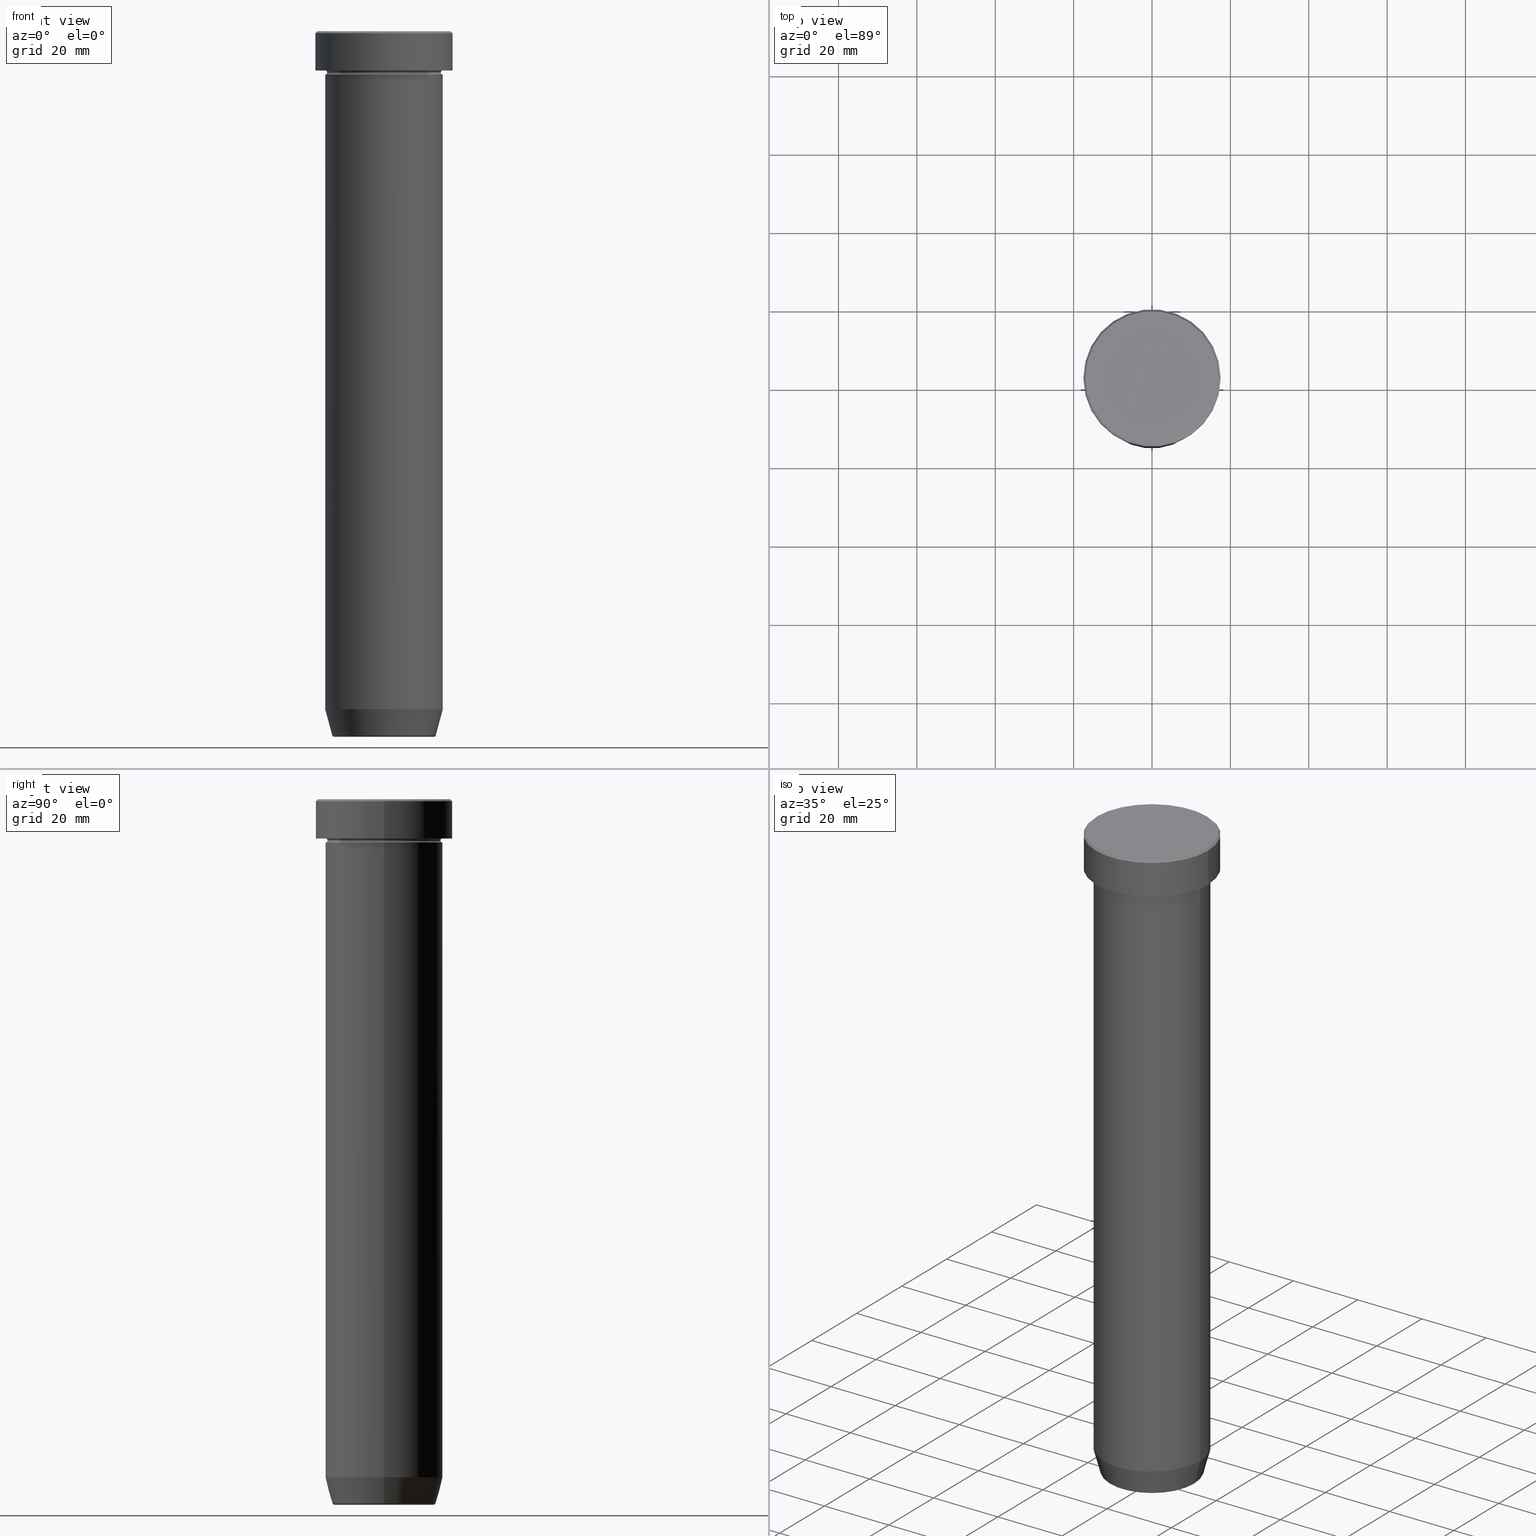
[diagram: canonical four-view strip — front | top / right | iso, engineering-drawing reading convention]
A machine part, canonical four-view strip (front | top / right | iso — engineering-drawing reading convention). The complete STEP part file that produces these views, byte-faithful:
ISO-10303-21;
HEADER;
FILE_DESCRIPTION (( 'STEP AP203' ),
    '1' );
FILE_NAME ('f621.STEP',
    '2024-01-02T17:38:19',
    ( '' ),
    ( '' ),
    'SwSTEP 2.0',
    'SolidWorks 2019',
    '' );
FILE_SCHEMA (( 'CONFIG_CONTROL_DESIGN' ));
ENDSEC;

DATA;
#1 = CARTESIAN_POINT ( 'NONE',  ( 0.000000000000000000, 0.000000000000000000, -9.999999999999998224 ) ) ;
#2 = VERTEX_POINT ( 'NONE', #99 ) ;
#3 = VERTEX_POINT ( 'NONE', #594 ) ;
#4 = CIRCLE ( 'NONE', #357, 0.5000000000000004441 ) ;
#5 = AXIS2_PLACEMENT_3D ( 'NONE', #224, #365, #536 ) ;
#6 = VERTEX_POINT ( 'NONE', #60 ) ;
#7 = PERSON_AND_ORGANIZATION ( #595, #177 ) ;
#8 = CC_DESIGN_SECURITY_CLASSIFICATION ( #44, ( #446 ) ) ;
#9 = EDGE_CURVE ( 'NONE', #333, #66, #551, .T. ) ;
#10 = EDGE_LOOP ( 'NONE', ( #458, #541, #545, #58 ) ) ;
#11 = CARTESIAN_POINT ( 'NONE',  ( 0.000000000000000000, 0.000000000000000000, 0.000000000000000000 ) ) ;
#12 = EDGE_LOOP ( 'NONE', ( #94, #548, #247, #422 ) ) ;
#13 = MANIFOLD_SOLID_BREP ( 'Zaoblit4', #158 ) ;
#14 = DIRECTION ( 'NONE',  ( 0.000000000000000000, 0.000000000000000000, 1.000000000000000000 ) ) ;
#15 = ORIENTED_EDGE ( 'NONE', *, *, #29, .T. ) ;
#16 = DATE_TIME_ROLE ( 'classification_date' ) ;
#17 = ORIENTED_EDGE ( 'NONE', *, *, #181, .F. ) ;
#18 = PERSON_AND_ORGANIZATION ( #595, #177 ) ;
#19 = EDGE_CURVE ( 'NONE', #54, #197, #467, .T. ) ;
#20 = DIRECTION ( 'NONE',  ( -1.224646799147353207E-16, 1.000000000000000000, 0.000000000000000000 ) ) ;
#21 = DIRECTION ( 'NONE',  ( 0.000000000000000000, 0.000000000000000000, -1.000000000000000000 ) ) ;
#22 = DIRECTION ( 'NONE',  ( -0.000000000000000000, -0.000000000000000000, 1.000000000000000000 ) ) ;
#23 = DIRECTION ( 'NONE',  ( -1.000000000000000000, 1.224646799147353454E-16, 0.000000000000000000 ) ) ;
#24 = FACE_OUTER_BOUND ( 'NONE', #508, .T. ) ;
#25 = UNCERTAINTY_MEASURE_WITH_UNIT (LENGTH_MEASURE( 1.000000000000000082E-05 ), #378, 'distance_accuracy_value', 'NONE');
#26 = AXIS2_PLACEMENT_3D ( 'NONE', #408, #399, #86 ) ;
#27 = CIRCLE ( 'NONE', #532, 0.5000000000000004441 ) ;
#28 = DIRECTION ( 'NONE',  ( -0.000000000000000000, -0.000000000000000000, 1.000000000000000000 ) ) ;
#29 = EDGE_CURVE ( 'NONE', #302, #301, #297, .T. ) ;
#30 = LOCAL_TIME ( 18, 38, 19.00000000000000000, #513 ) ;
#31 = PERSON_AND_ORGANIZATION_ROLE ( 'classification_officer' ) ;
#32 = APPLICATION_CONTEXT ( 'configuration controlled 3d designs of mechanical parts and assemblies' ) ;
#33 = CARTESIAN_POINT ( 'NONE',  ( -12.74069215899265828, 1.589857736427681035E-15, -180.0000000000000000 ) ) ;
#34 = DIRECTION ( 'NONE',  ( 0.000000000000000000, 0.000000000000000000, -1.000000000000000000 ) ) ;
#35 = EDGE_LOOP ( 'NONE', ( #343, #293, #152, #109 ) ) ;
#36 = DIRECTION ( 'NONE',  ( -0.7071067811865426878, 0.000000000000000000, -0.7071067811865524577 ) ) ;
#37 = FACE_OUTER_BOUND ( 'NONE', #462, .T. ) ;
#38 = DIRECTION ( 'NONE',  ( -0.000000000000000000, -0.000000000000000000, 1.000000000000000000 ) ) ;
#39 = DIRECTION ( 'NONE',  ( 0.000000000000000000, 0.000000000000000000, -1.000000000000000000 ) ) ;
#40 = ORIENTED_EDGE ( 'NONE', *, *, #19, .T. ) ;
#41 = PRODUCT_DEFINITION_SHAPE ( 'NONE', 'NONE',  #486 ) ;
#42 = EDGE_CURVE ( 'NONE', #54, #227, #27, .T. ) ;
#43 = DIRECTION ( 'NONE',  ( -0.000000000000000000, -0.000000000000000000, 1.000000000000000000 ) ) ;
#44 = SECURITY_CLASSIFICATION ( '', '', #433 ) ;
#45 = DIRECTION ( 'NONE',  ( -1.000000000000000000, 0.000000000000000000, 0.000000000000000000 ) ) ;
#46 = EDGE_LOOP ( 'NONE', ( #382, #562 ) ) ;
#47 = EDGE_LOOP ( 'NONE', ( #179, #237, #55, #519 ) ) ;
#48 = CYLINDRICAL_SURFACE ( 'NONE', #393, 15.00000000000000000 ) ;
#49 = ORIENTED_EDGE ( 'NONE', *, *, #76, .F. ) ;
#50 = CARTESIAN_POINT ( 'NONE',  ( 0.000000000000000000, 1.592040838891559450E-14, -180.0000000000000000 ) ) ;
#51 = AXIS2_PLACEMENT_3D ( 'NONE', #162, #392, #567 ) ;
#52 = DIRECTION ( 'NONE',  ( -1.000000000000000000, 0.000000000000000000, 0.000000000000000000 ) ) ;
#53 = AXIS2_PLACEMENT_3D ( 'NONE', #135, #28, #580 ) ;
#54 = VERTEX_POINT ( 'NONE', #33 ) ;
#55 = ORIENTED_EDGE ( 'NONE', *, *, #479, .T. ) ;
#56 = EDGE_CURVE ( 'NONE', #131, #295, #440, .T. ) ;
#57 = DIRECTION ( 'NONE',  ( -0.000000000000000000, -0.000000000000000000, 1.000000000000000000 ) ) ;
#58 = ORIENTED_EDGE ( 'NONE', *, *, #9, .F. ) ;
#59 = FACE_OUTER_BOUND ( 'NONE', #35, .T. ) ;
#60 = CARTESIAN_POINT ( 'NONE',  ( 15.00000000000000000, 0.000000000000000000, -36.00000000000000000 ) ) ;
#61 = EDGE_CURVE ( 'NONE', #414, #2, #570, .T. ) ;
#62 = SHAPE_DEFINITION_REPRESENTATION ( #41, #258 ) ;
#63 = DIRECTION ( 'NONE',  ( 0.000000000000000000, 0.000000000000000000, -1.000000000000000000 ) ) ;
#64 = CIRCLE ( 'NONE', #350, 15.00000000000000000 ) ;
#65 = ORIENTED_EDGE ( 'NONE', *, *, #511, .F. ) ;
#66 = VERTEX_POINT ( 'NONE', #308 ) ;
#67 = CALENDAR_DATE ( 2024, 2, 1 ) ;
#68 = CARTESIAN_POINT ( 'NONE',  ( -17.00000000000000000, 0.000000000000000000, 0.000000000000000000 ) ) ;
#69 = CARTESIAN_POINT ( 'NONE',  ( 0.000000000000000000, 0.000000000000000000, -36.00000000000000000 ) ) ;
#70 = ORIENTED_EDGE ( 'NONE', *, *, #597, .F. ) ;
#71 = FACE_OUTER_BOUND ( 'NONE', #194, .T. ) ;
#72 = COORDINATED_UNIVERSAL_TIME_OFFSET ( 1, 0, .AHEAD. ) ;
#73 = PERSON_AND_ORGANIZATION ( #595, #177 ) ;
#74 = AXIS2_PLACEMENT_3D ( 'NONE', #348, #63, #428 ) ;
#75 = AXIS2_PLACEMENT_3D ( 'NONE', #166, #43, #535 ) ;
#76 = EDGE_CURVE ( 'NONE', #3, #295, #126, .T. ) ;
#77 = FACE_OUTER_BOUND ( 'NONE', #12, .T. ) ;
#78 = LOCAL_TIME ( 18, 38, 19.00000000000000000, #160 ) ;
#79 = ADVANCED_FACE ( 'NONE', ( #487 ), #269, .T. ) ;
#80 = FACE_OUTER_BOUND ( 'NONE', #336, .T. ) ;
#81 = VECTOR ( 'NONE', #447, 1000.000000000000000 ) ;
#82 = CALENDAR_DATE ( 2024, 2, 1 ) ;
#83 = CARTESIAN_POINT ( 'NONE',  ( -17.00000000000000000, 0.000000000000000000, 0.000000000000000000 ) ) ;
#84 = DIRECTION ( 'NONE',  ( -0.000000000000000000, -0.000000000000000000, 1.000000000000000000 ) ) ;
#85 = CARTESIAN_POINT ( 'NONE',  ( 15.00000000000000000, 1.836970198721029589E-15, -9.999999999999998224 ) ) ;
#86 = DIRECTION ( 'NONE',  ( -1.000000000000000000, 0.000000000000000000, 0.000000000000000000 ) ) ;
#87 = DIRECTION ( 'NONE',  ( 1.224646799147353207E-16, 1.000000000000000000, 0.000000000000000000 ) ) ;
#88 = DIRECTION ( 'NONE',  ( 1.000000000000000000, 0.000000000000000000, 0.000000000000000000 ) ) ;
#89 = AXIS2_PLACEMENT_3D ( 'NONE', #176, #221, #321 ) ;
#90 = AXIS2_PLACEMENT_3D ( 'NONE', #492, #22, #537 ) ;
#91 = AXIS2_PLACEMENT_3D ( 'NONE', #240, #280, #334 ) ;
#92 = DIRECTION ( 'NONE',  ( -0.000000000000000000, -0.000000000000000000, 1.000000000000000000 ) ) ;
#93 = ORIENTED_EDGE ( 'NONE', *, *, #533, .F. ) ;
#94 = ORIENTED_EDGE ( 'NONE', *, *, #563, .F. ) ;
#95 = ORIENTED_EDGE ( 'NONE', *, *, #323, .F. ) ;
#96 = CARTESIAN_POINT ( 'NONE',  ( -13.12435565298213369, 1.607270014129604188E-15, -180.0000000000000000 ) ) ;
#97 = DIRECTION ( 'NONE',  ( 0.000000000000000000, 0.000000000000000000, -1.000000000000000000 ) ) ;
#98 = EDGE_CURVE ( 'NONE', #197, #54, #317, .T. ) ;
#99 = CARTESIAN_POINT ( 'NONE',  ( 17.00000000000000000, 2.112515728529184067E-15, 0.000000000000000000 ) ) ;
#100 = PLANE ( 'NONE',  #315 ) ;
#101 = DIRECTION ( 'NONE',  ( -0.000000000000000000, -0.000000000000000000, 1.000000000000000000 ) ) ;
#102 = CIRCLE ( 'NONE', #112, 14.49999999999999822 ) ;
#103 = EDGE_LOOP ( 'NONE', ( #552, #144 ) ) ;
#104 = EDGE_LOOP ( 'NONE', ( #338, #599, #430, #229 ) ) ;
#105 = DIRECTION ( 'NONE',  ( 1.000000000000000000, 0.000000000000000000, 0.000000000000000000 ) ) ;
#106 = DIRECTION ( 'NONE',  ( 1.000000000000000000, 0.000000000000000000, 0.000000000000000000 ) ) ;
#107 = ADVANCED_FACE ( 'NONE', ( #543 ), #184, .F. ) ;
#108 = ORIENTED_EDGE ( 'NONE', *, *, #56, .T. ) ;
#109 = ORIENTED_EDGE ( 'NONE', *, *, #397, .F. ) ;
#110 = DIRECTION ( 'NONE',  ( 1.000000000000000000, 0.000000000000000000, 0.000000000000000000 ) ) ;
#111 = DIRECTION ( 'NONE',  ( 1.000000000000000000, 0.000000000000000000, 0.000000000000000000 ) ) ;
#112 = AXIS2_PLACEMENT_3D ( 'NONE', #320, #38, #571 ) ;
#113 = ORIENTED_EDGE ( 'NONE', *, *, #479, .F. ) ;
#114 = PERSON_AND_ORGANIZATION ( #595, #177 ) ;
#115 = LOCAL_TIME ( 18, 38, 19.00000000000000000, #524 ) ;
#116 = ORIENTED_EDGE ( 'NONE', *, *, #29, .F. ) ;
#117 = ADVANCED_FACE ( 'NONE', ( #24 ), #581, .T. ) ;
#118 = TOROIDAL_SURFACE ( 'NONE', #74, 15.00000000000000000, 0.5000000000000000000 ) ;
#119 = CARTESIAN_POINT ( 'NONE',  ( 15.00000000000000000, 1.836970198721029589E-15, -10.49999999999999822 ) ) ;
#120 = AXIS2_PLACEMENT_3D ( 'NONE', #402, #327, #105 ) ;
#121 = EDGE_CURVE ( 'NONE', #344, #346, #182, .T. ) ;
#122 = CYLINDRICAL_SURFACE ( 'NONE', #485, 17.50000000000000000 ) ;
#123 = CARTESIAN_POINT ( 'NONE',  ( 12.74069215899265828, 0.000000000000000000, -180.0000000000000000 ) ) ;
#124 = PERSON_AND_ORGANIZATION ( #595, #177 ) ;
#125 = DIRECTION ( 'NONE',  ( -0.000000000000000000, -0.000000000000000000, 1.000000000000000000 ) ) ;
#126 = LINE ( 'NONE', #363, #138 ) ;
#127 = CARTESIAN_POINT ( 'NONE',  ( -15.00000000000000000, 1.836970198721029589E-15, -10.49999999999999822 ) ) ;
#128 = VECTOR ( 'NONE', #565, 1000.000000000000000 ) ;
#129 = CARTESIAN_POINT ( 'NONE',  ( 13.22365507213718594, 0.000000000000000000, -179.6294095225512422 ) ) ;
#130 = AXIS2_PLACEMENT_3D ( 'NONE', #421, #92, #559 ) ;
#131 = VERTEX_POINT ( 'NONE', #572 ) ;
#132 = CARTESIAN_POINT ( 'NONE',  ( -15.00000000000000000, 1.836970198721029589E-15, -36.00000000000000000 ) ) ;
#133 = EDGE_CURVE ( 'NONE', #233, #134, #286, .T. ) ;
#134 = VERTEX_POINT ( 'NONE', #85 ) ;
#135 = CARTESIAN_POINT ( 'NONE',  ( 0.000000000000000000, 0.000000000000000000, 0.000000000000000000 ) ) ;
#136 = AXIS2_PLACEMENT_3D ( 'NONE', #310, #165, #214 ) ;
#137 = DIRECTION ( 'NONE',  ( 1.000000000000000000, 0.000000000000000000, 0.000000000000000000 ) ) ;
#138 = VECTOR ( 'NONE', #84, 1000.000000000000000 ) ;
#139 = VERTEX_POINT ( 'NONE', #273 ) ;
#140 = EDGE_CURVE ( 'NONE', #197, #333, #530, .T. ) ;
#141 = DIRECTION ( 'NONE',  ( -0.000000000000000000, -0.000000000000000000, 1.000000000000000000 ) ) ;
#142 = DIRECTION ( 'NONE',  ( -0.000000000000000000, -0.000000000000000000, 1.000000000000000000 ) ) ;
#143 = CARTESIAN_POINT ( 'NONE',  ( 13.12435565298213369, 0.000000000000000000, -180.0000000000000000 ) ) ;
#144 = ORIENTED_EDGE ( 'NONE', *, *, #406, .T. ) ;
#145 = VECTOR ( 'NONE', #36, 1000.000000000000000 ) ;
#146 = CARTESIAN_POINT ( 'NONE',  ( 15.00000000000000000, 0.000000000000000000, -10.49999999999999822 ) ) ;
#147 = VECTOR ( 'NONE', #401, 1000.000000000000000 ) ;
#148 = EDGE_CURVE ( 'NONE', #3, #139, #226, .T. ) ;
#149 = ORIENTED_EDGE ( 'NONE', *, *, #236, .F. ) ;
#150 = DIRECTION ( 'NONE',  ( -0.2588190451025214611, 3.169619151431774186E-17, 0.9659258262890679791 ) ) ;
#151 = CARTESIAN_POINT ( 'NONE',  ( 0.000000000000000000, 0.000000000000000000, -9.999999999999998224 ) ) ;
#152 = ORIENTED_EDGE ( 'NONE', *, *, #434, .T. ) ;
#153 = PERSON_AND_ORGANIZATION ( #595, #177 ) ;
#154 = DIRECTION ( 'NONE',  ( -0.000000000000000000, -0.000000000000000000, 1.000000000000000000 ) ) ;
#155 = DIRECTION ( 'NONE',  ( 0.000000000000000000, -0.000000000000000000, 1.000000000000000000 ) ) ;
#156 = ORIENTED_EDGE ( 'NONE', *, *, #148, .T. ) ;
#157 = AXIS2_PLACEMENT_3D ( 'NONE', #183, #589, #248 ) ;
#158 = CLOSED_SHELL ( 'NONE', ( #375, #193, #117, #107, #525, #254, #290, #500 ) ) ;
#159 = ADVANCED_FACE ( 'NONE', ( #294 ), #473, .T. ) ;
#160 = COORDINATED_UNIVERSAL_TIME_OFFSET ( 1, 0, .AHEAD. ) ;
#161 = CALENDAR_DATE ( 2024, 2, 1 ) ;
#162 = CARTESIAN_POINT ( 'NONE',  ( 0.000000000000000000, 0.000000000000000000, -0.5000000000000073275 ) ) ;
#163 = CIRCLE ( 'NONE', #53, 17.00000000000000000 ) ;
#164 = CC_DESIGN_DATE_AND_TIME_ASSIGNMENT ( #304, #250, ( #486 ) ) ;
#165 = DIRECTION ( 'NONE',  ( -0.000000000000000000, -0.000000000000000000, 1.000000000000000000 ) ) ;
#166 = CARTESIAN_POINT ( 'NONE',  ( 0.000000000000000000, 0.000000000000000000, -36.00000000000000000 ) ) ;
#167 = FACE_OUTER_BOUND ( 'NONE', #10, .T. ) ;
#168 = APPROVAL ( #427, 'NEUR�EN�' ) ;
#169 = DIRECTION ( 'NONE',  ( 0.000000000000000000, 0.000000000000000000, -1.000000000000000000 ) ) ;
#170 = CYLINDRICAL_SURFACE ( 'NONE', #287, 17.50000000000000000 ) ;
#171 = APPROVAL_DATE_TIME ( #560, #394 ) ;
#172 = CARTESIAN_POINT ( 'NONE',  ( 0.000000000000000000, 0.000000000000000000, -179.5000000000000000 ) ) ;
#173 = AXIS2_PLACEMENT_3D ( 'NONE', #577, #268, #21 ) ;
#174 = EDGE_CURVE ( 'NONE', #344, #461, #435, .T. ) ;
#175 = DIRECTION ( 'NONE',  ( -1.000000000000000000, 0.000000000000000000, 0.000000000000000000 ) ) ;
#176 = CARTESIAN_POINT ( 'NONE',  ( 0.000000000000000000, 0.000000000000000000, -180.0000000000000000 ) ) ;
#177 = ORGANIZATION ( 'NEUR�EN�', 'NEUR�EN�', '' ) ;
#178 = DIRECTION ( 'NONE',  ( -0.000000000000000000, -0.000000000000000000, 1.000000000000000000 ) ) ;
#179 = ORIENTED_EDGE ( 'NONE', *, *, #121, .F. ) ;
#180 = DIRECTION ( 'NONE',  ( -0.000000000000000000, -0.000000000000000000, 1.000000000000000000 ) ) ;
#181 = EDGE_CURVE ( 'NONE', #301, #302, #239, .T. ) ;
#182 = CIRCLE ( 'NONE', #305, 0.5000000000000004441 ) ;
#183 = CARTESIAN_POINT ( 'NONE',  ( 12.74069215899265828, 0.000000000000000000, -179.5000000000000000 ) ) ;
#184 = PLANE ( 'NONE',  #191 ) ;
#185 = VECTOR ( 'NONE', #150, 1000.000000000000114 ) ;
#186 = FACE_OUTER_BOUND ( 'NONE', #47, .T. ) ;
#187 = ORIENTED_EDGE ( 'NONE', *, *, #434, .F. ) ;
#188 = DIRECTION ( 'NONE',  ( -0.000000000000000000, -0.000000000000000000, 1.000000000000000000 ) ) ;
#189 = DIRECTION ( 'NONE',  ( 0.2588190451025214611, 0.000000000000000000, 0.9659258262890679791 ) ) ;
#190 = ORIENTED_EDGE ( 'NONE', *, *, #236, .T. ) ;
#191 = AXIS2_PLACEMENT_3D ( 'NONE', #335, #97, #225 ) ;
#192 = LINE ( 'NONE', #96, #185 ) ;
#193 = ADVANCED_FACE ( 'NONE', ( #167 ), #507, .T. ) ;
#194 = EDGE_LOOP ( 'NONE', ( #93, #470, #423, #113 ) ) ;
#195 = LOCAL_TIME ( 18, 38, 19.00000000000000000, #482 ) ;
#196 = DIRECTION ( 'NONE',  ( 1.000000000000000000, 0.000000000000000000, 0.000000000000000000 ) ) ;
#197 = VERTEX_POINT ( 'NONE', #123 ) ;
#198 = APPROVAL_DATE_TIME ( #270, #168 ) ;
#199 = EDGE_CURVE ( 'NONE', #289, #346, #582, .T. ) ;
#200 = MANIFOLD_SOLID_BREP ( 'Zkosen�1', #316 ) ;
#201 = APPROVAL_DATE_TIME ( #292, #369 ) ;
#202 = CONICAL_SURFACE ( 'NONE', #455, 13.12435565298213369, 0.2617993877991502405 ) ;
#203 = CONICAL_SURFACE ( 'NONE', #531, 17.00000000000000000, 0.7853981633974415066 ) ;
#204 = AXIS2_PLACEMENT_3D ( 'NONE', #69, #255, #432 ) ;
#205 = ORIENTED_EDGE ( 'NONE', *, *, #522, .F. ) ;
#206 = AXIS2_PLACEMENT_3D ( 'NONE', #1, #101, #106 ) ;
#207 = EDGE_CURVE ( 'NONE', #295, #131, #341, .T. ) ;
#208 = CARTESIAN_POINT ( 'NONE',  ( 14.49999999999999822, 0.000000000000000000, -10.49999999999999822 ) ) ;
#209 = DIRECTION ( 'NONE',  ( 1.000000000000000000, 0.000000000000000000, 0.000000000000000000 ) ) ;
#210 = CC_DESIGN_DATE_AND_TIME_ASSIGNMENT ( #303, #16, ( #44 ) ) ;
#211 = DIRECTION ( 'NONE',  ( -1.000000000000000000, 0.000000000000000000, 0.000000000000000000 ) ) ;
#212 = DIRECTION ( 'NONE',  ( 1.000000000000000000, 0.000000000000000000, 0.000000000000000000 ) ) ;
#213 = CARTESIAN_POINT ( 'NONE',  ( -17.50000000000000000, 2.143131898507868248E-15, 0.000000000000000000 ) ) ;
#214 = DIRECTION ( 'NONE',  ( 1.000000000000000000, 0.000000000000000000, 0.000000000000000000 ) ) ;
#215 = DIRECTION ( 'NONE',  ( 0.000000000000000000, 0.000000000000000000, -1.000000000000000000 ) ) ;
#216 = CARTESIAN_POINT ( 'NONE',  ( 0.000000000000000000, 0.000000000000000000, -0.5000000000000073275 ) ) ;
#217 = DIRECTION ( 'NONE',  ( -1.000000000000000000, -1.224646799147349509E-16, 0.000000000000000000 ) ) ;
#218 = APPROVAL_PERSON_ORGANIZATION ( #7, #369, #351 ) ;
#219 = CALENDAR_DATE ( 2024, 2, 1 ) ;
#220 = CARTESIAN_POINT ( 'NONE',  ( 0.000000000000000000, 0.000000000000000000, -10.49999999999999822 ) ) ;
#221 = DIRECTION ( 'NONE',  ( 0.000000000000000000, 0.000000000000000000, -1.000000000000000000 ) ) ;
#222 = EDGE_CURVE ( 'NONE', #2, #295, #483, .T. ) ;
#223 = PLANE ( 'NONE',  #554 ) ;
#224 = CARTESIAN_POINT ( 'NONE',  ( 0.000000000000000000, 0.000000000000000000, 0.000000000000000000 ) ) ;
#225 = DIRECTION ( 'NONE',  ( -1.000000000000000000, 0.000000000000000000, -0.000000000000000000 ) ) ;
#226 = CIRCLE ( 'NONE', #381, 17.50000000000000000 ) ;
#227 = VERTEX_POINT ( 'NONE', #488 ) ;
#228 = TOROIDAL_SURFACE ( 'NONE', #518, 12.74069215899265828, 0.5000000000000000000 ) ;
#229 = ORIENTED_EDGE ( 'NONE', *, *, #207, .F. ) ;
#230 = FACE_OUTER_BOUND ( 'NONE', #282, .T. ) ;
#231 = CARTESIAN_POINT ( 'NONE',  ( 0.000000000000000000, 0.000000000000000000, 0.000000000000000000 ) ) ;
#232 = DIRECTION ( 'NONE',  ( -1.000000000000000000, 0.000000000000000000, -0.000000000000000000 ) ) ;
#233 = VERTEX_POINT ( 'NONE', #208 ) ;
#234 = EDGE_LOOP ( 'NONE', ( #596, #379 ) ) ;
#235 = CARTESIAN_POINT ( 'NONE',  ( 0.000000000000000000, 0.000000000000000000, -10.49999999999999822 ) ) ;
#236 = EDGE_CURVE ( 'NONE', #139, #131, #309, .T. ) ;
#237 = ORIENTED_EDGE ( 'NONE', *, *, #354, .F. ) ;
#238 = CARTESIAN_POINT ( 'NONE',  ( 0.000000000000000000, 0.000000000000000000, -9.999999999999998224 ) ) ;
#239 = CIRCLE ( 'NONE', #136, 15.00000000000000000 ) ;
#240 = CARTESIAN_POINT ( 'NONE',  ( 0.000000000000000000, 0.000000000000000000, -179.5000000000000000 ) ) ;
#241 = ORIENTED_EDGE ( 'NONE', *, *, #307, .F. ) ;
#242 = DIRECTION ( 'NONE',  ( 1.000000000000000000, 0.000000000000000000, 0.000000000000000000 ) ) ;
#243 = CARTESIAN_POINT ( 'NONE',  ( 0.000000000000000000, 0.000000000000000000, -173.0000000000000000 ) ) ;
#244 = EDGE_LOOP ( 'NONE', ( #588, #15, #380, #512 ) ) ;
#245 = ADVANCED_FACE ( 'NONE', ( #306 ), #118, .F. ) ;
#246 = DIRECTION ( 'NONE',  ( 0.000000000000000000, 0.000000000000000000, -1.000000000000000000 ) ) ;
#247 = ORIENTED_EDGE ( 'NONE', *, *, #9, .T. ) ;
#248 = DIRECTION ( 'NONE',  ( 0.000000000000000000, 0.000000000000000000, -1.000000000000000000 ) ) ;
#249 = AXIS2_PLACEMENT_3D ( 'NONE', #498, #125, #209 ) ;
#250 = DATE_TIME_ROLE ( 'creation_date' ) ;
#251 = CIRCLE ( 'NONE', #395, 13.22365507213718594 ) ;
#252 = CIRCLE ( 'NONE', #130, 14.49999999999999822 ) ;
#253 = CALENDAR_DATE ( 2024, 2, 1 ) ;
#254 = ADVANCED_FACE ( 'NONE', ( #77 ), #202, .T. ) ;
#255 = DIRECTION ( 'NONE',  ( -0.000000000000000000, -0.000000000000000000, 1.000000000000000000 ) ) ;
#256 = ORIENTED_EDGE ( 'NONE', *, *, #56, .F. ) ;
#257 = MECHANICAL_CONTEXT ( 'NONE', #568, 'mechanical' ) ;
#258 = ADVANCED_BREP_SHAPE_REPRESENTATION ( 'f621', ( #200, #13, #281 ), #366 ) ;
#259 = AXIS2_PLACEMENT_3D ( 'NONE', #119, #20, #217 ) ;
#260 = ORIENTED_EDGE ( 'NONE', *, *, #349, .T. ) ;
#261 = EDGE_CURVE ( 'NONE', #414, #131, #299, .T. ) ;
#262 = CC_DESIGN_APPROVAL ( #394, ( #486 ) ) ;
#263 = DIRECTION ( 'NONE',  ( 1.000000000000000000, 0.000000000000000000, 0.000000000000000000 ) ) ;
#264 = PRODUCT_RELATED_PRODUCT_CATEGORY ( 'detail', '', ( #557 ) ) ;
#265 = CARTESIAN_POINT ( 'NONE',  ( 0.000000000000000000, 0.000000000000000000, 0.000000000000000000 ) ) ;
#266 = DIRECTION ( 'NONE',  ( -0.000000000000000000, -0.000000000000000000, 1.000000000000000000 ) ) ;
#267 = AXIS2_PLACEMENT_3D ( 'NONE', #490, #436, #263 ) ;
#268 = DIRECTION ( 'NONE',  ( -0.000000000000000000, -1.000000000000000000, -0.000000000000000000 ) ) ;
#269 = CONICAL_SURFACE ( 'NONE', #296, 17.00000000000000000, 0.7853981633974415066 ) ;
#270 = DATE_AND_TIME ( #82, #78 ) ;
#271 = AXIS2_PLACEMENT_3D ( 'NONE', #235, #57, #598 ) ;
#272 = DIRECTION ( 'NONE',  ( 1.000000000000000000, 0.000000000000000000, 0.000000000000000000 ) ) ;
#273 = CARTESIAN_POINT ( 'NONE',  ( -17.50000000000000000, 2.143131898507868248E-15, -9.999999999999998224 ) ) ;
#274 = ADVANCED_FACE ( 'NONE', ( #230 ), #534, .T. ) ;
#275 = CARTESIAN_POINT ( 'NONE',  ( 15.00000000000000000, 0.000000000000000000, -36.00000000000000000 ) ) ;
#276 = DIRECTION ( 'NONE',  ( -0.000000000000000000, -0.000000000000000000, 1.000000000000000000 ) ) ;
#277 = EDGE_LOOP ( 'NONE', ( #285, #520, #65, #412 ) ) ;
#278 = CARTESIAN_POINT ( 'NONE',  ( -15.00000000000000000, 1.836970198721029589E-15, 0.000000000000000000 ) ) ;
#279 = ADVANCED_FACE ( 'NONE', ( #37 ), #319, .T. ) ;
#280 = DIRECTION ( 'NONE',  ( -0.000000000000000000, -0.000000000000000000, 1.000000000000000000 ) ) ;
#281 = AXIS2_PLACEMENT_3D ( 'NONE', #388, #14, #196 ) ;
#282 = EDGE_LOOP ( 'NONE', ( #17, #116 ) ) ;
#283 = CARTESIAN_POINT ( 'NONE',  ( 0.000000000000000000, 0.000000000000000000, -179.6294095225512422 ) ) ;
#284 = ORIENTED_EDGE ( 'NONE', *, *, #539, .T. ) ;
#285 = ORIENTED_EDGE ( 'NONE', *, *, #19, .F. ) ;
#286 = CIRCLE ( 'NONE', #259, 0.5000000000000004441 ) ;
#287 = AXIS2_PLACEMENT_3D ( 'NONE', #265, #495, #325 ) ;
#288 = LINE ( 'NONE', #587, #374 ) ;
#289 = VERTEX_POINT ( 'NONE', #411 ) ;
#290 = ADVANCED_FACE ( 'NONE', ( #409 ), #100, .F. ) ;
#291 = CARTESIAN_POINT ( 'NONE',  ( 0.000000000000000000, 0.000000000000000000, 0.000000000000000000 ) ) ;
#292 = DATE_AND_TIME ( #161, #195 ) ;
#293 = ORIENTED_EDGE ( 'NONE', *, *, #361, .T. ) ;
#294 = FACE_OUTER_BOUND ( 'NONE', #103, .T. ) ;
#295 = VERTEX_POINT ( 'NONE', #521 ) ;
#296 = AXIS2_PLACEMENT_3D ( 'NONE', #404, #448, #211 ) ;
#297 = CIRCLE ( 'NONE', #204, 15.00000000000000000 ) ;
#298 = ADVANCED_FACE ( 'NONE', ( #71 ), #491, .F. ) ;
#299 = LINE ( 'NONE', #68, #145 ) ;
#300 = DIRECTION ( 'NONE',  ( 1.000000000000000000, 0.000000000000000000, 0.000000000000000000 ) ) ;
#301 = VERTEX_POINT ( 'NONE', #275 ) ;
#302 = VERTEX_POINT ( 'NONE', #132 ) ;
#303 = DATE_AND_TIME ( #219, #386 ) ;
#304 = DATE_AND_TIME ( #253, #30 ) ;
#305 = AXIS2_PLACEMENT_3D ( 'NONE', #127, #87, #355 ) ;
#306 = FACE_OUTER_BOUND ( 'NONE', #471, .T. ) ;
#307 = EDGE_CURVE ( 'NONE', #461, #134, #590, .T. ) ;
#308 = CARTESIAN_POINT ( 'NONE',  ( 15.00000000000000178, 0.000000000000000000, -173.0000000000000000 ) ) ;
#309 = LINE ( 'NONE', #213, #464 ) ;
#310 = CARTESIAN_POINT ( 'NONE',  ( 0.000000000000000000, 0.000000000000000000, -36.00000000000000000 ) ) ;
#311 = CARTESIAN_POINT ( 'NONE',  ( -15.00000000000000000, 1.836970198721029589E-15, -11.00000000000000000 ) ) ;
#312 = ADVANCED_FACE ( 'NONE', ( #80 ), #170, .T. ) ;
#313 = LINE ( 'NONE', #403, #81 ) ;
#314 = AXIS2_PLACEMENT_3D ( 'NONE', #437, #481, #569 ) ;
#315 = AXIS2_PLACEMENT_3D ( 'NONE', #50, #324, #137 ) ;
#316 = CLOSED_SHELL ( 'NONE', ( #454, #245, #298, #279, #367, #274, #159, #312, #340, #416, #586, #438, #79 ) ) ;
#317 = CIRCLE ( 'NONE', #89, 12.74069215899265828 ) ;
#318 = FACE_OUTER_BOUND ( 'NONE', #469, .T. ) ;
#319 = CYLINDRICAL_SURFACE ( 'NONE', #371, 15.00000000000000000 ) ;
#320 = CARTESIAN_POINT ( 'NONE',  ( 0.000000000000000000, 0.000000000000000000, -10.49999999999999822 ) ) ;
#321 = DIRECTION ( 'NONE',  ( 1.000000000000000000, 0.000000000000000000, 0.000000000000000000 ) ) ;
#322 = ORIENTED_EDGE ( 'NONE', *, *, #133, .T. ) ;
#323 = EDGE_CURVE ( 'NONE', #6, #547, #457, .T. ) ;
#324 = DIRECTION ( 'NONE',  ( 0.000000000000000000, -0.000000000000000000, 1.000000000000000000 ) ) ;
#325 = DIRECTION ( 'NONE',  ( 1.000000000000000000, 0.000000000000000000, 0.000000000000000000 ) ) ;
#326 = AXIS2_PLACEMENT_3D ( 'NONE', #497, #169, #449 ) ;
#327 = DIRECTION ( 'NONE',  ( -0.000000000000000000, -0.000000000000000000, 1.000000000000000000 ) ) ;
#328 = AXIS2_PLACEMENT_3D ( 'NONE', #489, #266, #88 ) ;
#329 = CC_DESIGN_PERSON_AND_ORGANIZATION_ASSIGNMENT ( #114, #445, ( #446 ) ) ;
#330 = EDGE_LOOP ( 'NONE', ( #332, #496, #453, #70 ) ) ;
#331 = CARTESIAN_POINT ( 'NONE',  ( -15.00000000000000000, 1.836970198721029589E-15, -36.00000000000000000 ) ) ;
#332 = ORIENTED_EDGE ( 'NONE', *, *, #133, .F. ) ;
#333 = VERTEX_POINT ( 'NONE', #129 ) ;
#334 = DIRECTION ( 'NONE',  ( 1.000000000000000000, 0.000000000000000000, 0.000000000000000000 ) ) ;
#335 = CARTESIAN_POINT ( 'NONE',  ( 0.000000000000000000, 0.000000000000000000, -36.00000000000000000 ) ) ;
#336 = EDGE_LOOP ( 'NONE', ( #149, #505, #516, #418 ) ) ;
#337 = ORIENTED_EDGE ( 'NONE', *, *, #307, .T. ) ;
#338 = ORIENTED_EDGE ( 'NONE', *, *, #222, .F. ) ;
#339 = FACE_OUTER_BOUND ( 'NONE', #549, .T. ) ;
#340 = ADVANCED_FACE ( 'NONE', ( #362, #439 ), #223, .T. ) ;
#341 = CIRCLE ( 'NONE', #51, 17.50000000000000000 ) ;
#342 = DIRECTION ( 'NONE',  ( -0.000000000000000000, -0.000000000000000000, 1.000000000000000000 ) ) ;
#343 = ORIENTED_EDGE ( 'NONE', *, *, #349, .F. ) ;
#344 = VERTEX_POINT ( 'NONE', #456 ) ;
#345 = AXIS2_PLACEMENT_3D ( 'NONE', #238, #188, #370 ) ;
#346 = VERTEX_POINT ( 'NONE', #311 ) ;
#347 = CARTESIAN_POINT ( 'NONE',  ( 15.00000000000000000, 0.000000000000000000, 0.000000000000000000 ) ) ;
#348 = CARTESIAN_POINT ( 'NONE',  ( 0.000000000000000000, 0.000000000000000000, -10.49999999999999822 ) ) ;
#349 = EDGE_CURVE ( 'NONE', #444, #547, #585, .T. ) ;
#350 = AXIS2_PLACEMENT_3D ( 'NONE', #396, #359, #272 ) ;
#351 = APPROVAL_ROLE ( '' ) ;
#352 = APPROVAL_ROLE ( '' ) ;
#353 = APPLICATION_PROTOCOL_DEFINITION ( 'international standard', 'config_control_design', 1994, #568 ) ;
#354 = EDGE_CURVE ( 'NONE', #233, #344, #102, .T. ) ;
#355 = DIRECTION ( 'NONE',  ( -1.000000000000000000, 1.224646799147349509E-16, 0.000000000000000000 ) ) ;
#356 = CARTESIAN_POINT ( 'NONE',  ( 17.00000000000000000, 2.081899558550500280E-15, 0.000000000000000000 ) ) ;
#357 = AXIS2_PLACEMENT_3D ( 'NONE', #146, #410, #506 ) ;
#358 = CIRCLE ( 'NONE', #206, 17.50000000000000000 ) ;
#359 = DIRECTION ( 'NONE',  ( -0.000000000000000000, -0.000000000000000000, 1.000000000000000000 ) ) ;
#360 = CARTESIAN_POINT ( 'NONE',  ( -12.74069215899265828, 1.560284787143214098E-15, -179.5000000000000000 ) ) ;
#361 = EDGE_CURVE ( 'NONE', #444, #66, #405, .T. ) ;
#362 = FACE_BOUND ( 'NONE', #546, .T. ) ;
#363 = CARTESIAN_POINT ( 'NONE',  ( 17.50000000000000000, 0.000000000000000000, 0.000000000000000000 ) ) ;
#364 = DIRECTION ( 'NONE',  ( 0.000000000000000000, 0.000000000000000000, -1.000000000000000000 ) ) ;
#365 = DIRECTION ( 'NONE',  ( -0.000000000000000000, -0.000000000000000000, 1.000000000000000000 ) ) ;
#366 =( GEOMETRIC_REPRESENTATION_CONTEXT ( 3 ) GLOBAL_UNCERTAINTY_ASSIGNED_CONTEXT ( ( #25 ) ) GLOBAL_UNIT_ASSIGNED_CONTEXT ( ( #378, #501, #413 ) ) REPRESENTATION_CONTEXT ( 'NONE', 'WORKASPACE' ) );
#367 = ADVANCED_FACE ( 'NONE', ( #318 ), #122, .T. ) ;
#368 = FACE_OUTER_BOUND ( 'NONE', #277, .T. ) ;
#369 = APPROVAL ( #400, 'NEUR�EN�' ) ;
#370 = DIRECTION ( 'NONE',  ( -1.000000000000000000, 0.000000000000000000, 0.000000000000000000 ) ) ;
#371 = AXIS2_PLACEMENT_3D ( 'NONE', #231, #540, #242 ) ;
#372 = ORIENTED_EDGE ( 'NONE', *, *, #98, .F. ) ;
#373 = DIRECTION ( 'NONE',  ( 1.000000000000000000, 0.000000000000000000, 0.000000000000000000 ) ) ;
#374 = VECTOR ( 'NONE', #504, 1000.000000000000000 ) ;
#375 = ADVANCED_FACE ( 'NONE', ( #368 ), #228, .T. ) ;
#376 = DIRECTION ( 'NONE',  ( -1.000000000000000000, 0.000000000000000000, 0.000000000000000000 ) ) ;
#377 = ORIENTED_EDGE ( 'NONE', *, *, #463, .T. ) ;
#378 =( LENGTH_UNIT ( ) NAMED_UNIT ( * ) SI_UNIT ( .MILLI., .METRE. ) );
#379 = ORIENTED_EDGE ( 'NONE', *, *, #397, .T. ) ;
#380 = ORIENTED_EDGE ( 'NONE', *, *, #579, .T. ) ;
#381 = AXIS2_PLACEMENT_3D ( 'NONE', #151, #515, #110 ) ;
#382 = ORIENTED_EDGE ( 'NONE', *, *, #148, .F. ) ;
#383 = AXIS2_PLACEMENT_3D ( 'NONE', #216, #39, #443 ) ;
#384 = FACE_OUTER_BOUND ( 'NONE', #503, .T. ) ;
#385 = CC_DESIGN_PERSON_AND_ORGANIZATION_ASSIGNMENT ( #153, #566, ( #486 ) ) ;
#386 = LOCAL_TIME ( 18, 38, 19.00000000000000000, #72 ) ;
#387 = ORIENTED_EDGE ( 'NONE', *, *, #98, .T. ) ;
#388 = CARTESIAN_POINT ( 'NONE',  ( 0.000000000000000000, 0.000000000000000000, 0.000000000000000000 ) ) ;
#389 = PERSON_AND_ORGANIZATION ( #595, #177 ) ;
#390 = AXIS2_PLACEMENT_3D ( 'NONE', #220, #364, #175 ) ;
#391 = APPROVAL_STATUS ( 'not_yet_approved' ) ;
#392 = DIRECTION ( 'NONE',  ( 0.000000000000000000, 0.000000000000000000, -1.000000000000000000 ) ) ;
#393 = AXIS2_PLACEMENT_3D ( 'NONE', #425, #142, #593 ) ;
#394 = APPROVAL ( #391, 'NEUR�EN�' ) ;
#395 = AXIS2_PLACEMENT_3D ( 'NONE', #283, #550, #45 ) ;
#396 = CARTESIAN_POINT ( 'NONE',  ( 0.000000000000000000, 0.000000000000000000, -11.00000000000000000 ) ) ;
#397 = EDGE_CURVE ( 'NONE', #547, #6, #556, .T. ) ;
#398 = ORIENTED_EDGE ( 'NONE', *, *, #140, .T. ) ;
#399 = DIRECTION ( 'NONE',  ( -0.000000000000000000, -0.000000000000000000, 1.000000000000000000 ) ) ;
#400 = APPROVAL_STATUS ( 'not_yet_approved' ) ;
#401 = DIRECTION ( 'NONE',  ( -0.000000000000000000, -0.000000000000000000, 1.000000000000000000 ) ) ;
#402 = CARTESIAN_POINT ( 'NONE',  ( 0.000000000000000000, 0.000000000000000000, -10.49999999999999822 ) ) ;
#403 = CARTESIAN_POINT ( 'NONE',  ( 15.00000000000000000, 0.000000000000000000, 0.000000000000000000 ) ) ;
#404 = CARTESIAN_POINT ( 'NONE',  ( 0.000000000000000000, 0.000000000000000000, 0.000000000000000000 ) ) ;
#405 = CIRCLE ( 'NONE', #328, 15.00000000000000178 ) ;
#406 = EDGE_CURVE ( 'NONE', #2, #414, #163, .T. ) ;
#407 = CC_DESIGN_APPROVAL ( #369, ( #44 ) ) ;
#408 = CARTESIAN_POINT ( 'NONE',  ( 0.000000000000000000, 0.000000000000000000, -9.999999999999998224 ) ) ;
#409 = FACE_OUTER_BOUND ( 'NONE', #502, .T. ) ;
#410 = DIRECTION ( 'NONE',  ( 0.000000000000000000, -1.000000000000000000, 0.000000000000000000 ) ) ;
#411 = CARTESIAN_POINT ( 'NONE',  ( 15.00000000000000000, 0.000000000000000000, -11.00000000000000000 ) ) ;
#412 = ORIENTED_EDGE ( 'NONE', *, *, #140, .F. ) ;
#413 =( NAMED_UNIT ( * ) SI_UNIT ( $, .STERADIAN. ) SOLID_ANGLE_UNIT ( ) );
#414 = VERTEX_POINT ( 'NONE', #83 ) ;
#415 = TOROIDAL_SURFACE ( 'NONE', #390, 15.00000000000000000, 0.5000000000000000000 ) ;
#416 = ADVANCED_FACE ( 'NONE', ( #576 ), #450, .T. ) ;
#417 = CARTESIAN_POINT ( 'NONE',  ( 0.000000000000000000, 0.000000000000000000, -179.6294095225512422 ) ) ;
#418 = ORIENTED_EDGE ( 'NONE', *, *, #207, .T. ) ;
#419 = ORIENTED_EDGE ( 'NONE', *, *, #579, .F. ) ;
#420 = ORIENTED_EDGE ( 'NONE', *, *, #406, .F. ) ;
#421 = CARTESIAN_POINT ( 'NONE',  ( 0.000000000000000000, 0.000000000000000000, -10.49999999999999822 ) ) ;
#422 = ORIENTED_EDGE ( 'NONE', *, *, #361, .F. ) ;
#423 = ORIENTED_EDGE ( 'NONE', *, *, #424, .T. ) ;
#424 = EDGE_CURVE ( 'NONE', #346, #289, #64, .T. ) ;
#425 = CARTESIAN_POINT ( 'NONE',  ( 0.000000000000000000, 0.000000000000000000, 0.000000000000000000 ) ) ;
#426 = DESIGN_CONTEXT ( 'detailed design', #32, 'design' ) ;
#427 = APPROVAL_STATUS ( 'not_yet_approved' ) ;
#428 = DIRECTION ( 'NONE',  ( -1.000000000000000000, 0.000000000000000000, 0.000000000000000000 ) ) ;
#429 = CC_DESIGN_PERSON_AND_ORGANIZATION_ASSIGNMENT ( #389, #31, ( #44 ) ) ;
#430 = ORIENTED_EDGE ( 'NONE', *, *, #261, .T. ) ;
#431 = PERSON_AND_ORGANIZATION ( #595, #177 ) ;
#432 = DIRECTION ( 'NONE',  ( 1.000000000000000000, 0.000000000000000000, 0.000000000000000000 ) ) ;
#433 = SECURITY_CLASSIFICATION_LEVEL ( 'unclassified' ) ;
#434 = EDGE_CURVE ( 'NONE', #66, #6, #313, .T. ) ;
#435 = CIRCLE ( 'NONE', #173, 0.5000000000000004441 ) ;
#436 = DIRECTION ( 'NONE',  ( -0.000000000000000000, -0.000000000000000000, 1.000000000000000000 ) ) ;
#437 = CARTESIAN_POINT ( 'NONE',  ( 0.000000000000000000, 0.000000000000000000, -11.00000000000000000 ) ) ;
#438 = ADVANCED_FACE ( 'NONE', ( #583 ), #415, .F. ) ;
#439 = FACE_OUTER_BOUND ( 'NONE', #46, .T. ) ;
#440 = CIRCLE ( 'NONE', #383, 17.50000000000000000 ) ;
#441 = AXIS2_PLACEMENT_3D ( 'NONE', #529, #451, #212 ) ;
#442 = DIRECTION ( 'NONE',  ( 1.000000000000000000, 0.000000000000000000, 0.000000000000000000 ) ) ;
#443 = DIRECTION ( 'NONE',  ( 1.000000000000000000, 0.000000000000000000, 0.000000000000000000 ) ) ;
#444 = VERTEX_POINT ( 'NONE', #526 ) ;
#445 = PERSON_AND_ORGANIZATION_ROLE ( 'design_supplier' ) ;
#446 = PRODUCT_DEFINITION_FORMATION_WITH_SPECIFIED_SOURCE ( 'LIBOVOLN�', '', #557, .NOT_KNOWN. ) ;
#447 = DIRECTION ( 'NONE',  ( -0.000000000000000000, -0.000000000000000000, 1.000000000000000000 ) ) ;
#448 = DIRECTION ( 'NONE',  ( 0.000000000000000000, 0.000000000000000000, -1.000000000000000000 ) ) ;
#449 = DIRECTION ( 'NONE',  ( -1.000000000000000000, 0.000000000000000000, -0.000000000000000000 ) ) ;
#450 = CYLINDRICAL_SURFACE ( 'NONE', #249, 15.00000000000000000 ) ;
#451 = DIRECTION ( 'NONE',  ( -0.000000000000000000, -0.000000000000000000, 1.000000000000000000 ) ) ;
#452 = ORIENTED_EDGE ( 'NONE', *, *, #181, .T. ) ;
#453 = ORIENTED_EDGE ( 'NONE', *, *, #174, .T. ) ;
#454 = ADVANCED_FACE ( 'NONE', ( #339 ), #203, .T. ) ;
#455 = AXIS2_PLACEMENT_3D ( 'NONE', #561, #154, #111 ) ;
#456 = CARTESIAN_POINT ( 'NONE',  ( -14.49999999999999822, 1.806354028742345802E-15, -10.49999999999999822 ) ) ;
#457 = CIRCLE ( 'NONE', #75, 15.00000000000000000 ) ;
#458 = ORIENTED_EDGE ( 'NONE', *, *, #511, .T. ) ;
#459 = TOROIDAL_SURFACE ( 'NONE', #271, 15.00000000000000000, 0.5000000000000000000 ) ;
#460 = CARTESIAN_POINT ( 'NONE',  ( -15.00000000000000000, 0.000000000000000000, -9.999999999999998224 ) ) ;
#461 = VERTEX_POINT ( 'NONE', #460 ) ;
#462 = EDGE_LOOP ( 'NONE', ( #452, #284, #475, #419 ) ) ;
#463 = EDGE_CURVE ( 'NONE', #66, #444, #466, .T. ) ;
#464 = VECTOR ( 'NONE', #573, 1000.000000000000000 ) ;
#465 = CC_DESIGN_PERSON_AND_ORGANIZATION_ASSIGNMENT ( #73, #578, ( #446 ) ) ;
#466 = CIRCLE ( 'NONE', #509, 15.00000000000000178 ) ;
#467 = CIRCLE ( 'NONE', #542, 12.74069215899265828 ) ;
#468 = LINE ( 'NONE', #347, #476 ) ;
#469 = EDGE_LOOP ( 'NONE', ( #156, #190, #108, #49 ) ) ;
#470 = ORIENTED_EDGE ( 'NONE', *, *, #121, .T. ) ;
#471 = EDGE_LOOP ( 'NONE', ( #523, #322, #241, #477 ) ) ;
#472 = PERSON_AND_ORGANIZATION_ROLE ( 'design_owner' ) ;
#473 = PLANE ( 'NONE',  #484 ) ;
#474 = VECTOR ( 'NONE', #189, 1000.000000000000114 ) ;
#475 = ORIENTED_EDGE ( 'NONE', *, *, #199, .F. ) ;
#476 = VECTOR ( 'NONE', #180, 1000.000000000000000 ) ;
#477 = ORIENTED_EDGE ( 'NONE', *, *, #174, .F. ) ;
#478 = APPLICATION_PROTOCOL_DEFINITION ( 'international standard', 'config_control_design', 1994, #32 ) ;
#479 = EDGE_CURVE ( 'NONE', #233, #289, #4, .T. ) ;
#480 = CARTESIAN_POINT ( 'NONE',  ( 0.000000000000000000, 0.000000000000000000, -180.0000000000000000 ) ) ;
#481 = DIRECTION ( 'NONE',  ( -0.000000000000000000, -0.000000000000000000, 1.000000000000000000 ) ) ;
#482 = COORDINATED_UNIVERSAL_TIME_OFFSET ( 1, 0, .AHEAD. ) ;
#483 = LINE ( 'NONE', #356, #128 ) ;
#484 = AXIS2_PLACEMENT_3D ( 'NONE', #11, #155, #574 ) ;
#485 = AXIS2_PLACEMENT_3D ( 'NONE', #527, #276, #493 ) ;
#486 = PRODUCT_DEFINITION ( 'NEZN�M�', '', #446, #426 ) ;
#487 = FACE_OUTER_BOUND ( 'NONE', #104, .T. ) ;
#488 = CARTESIAN_POINT ( 'NONE',  ( -13.22365507213718594, 1.728200442216588189E-15, -179.6294095225512422 ) ) ;
#489 = CARTESIAN_POINT ( 'NONE',  ( 0.000000000000000000, 0.000000000000000000, -173.0000000000000000 ) ) ;
#490 = CARTESIAN_POINT ( 'NONE',  ( 0.000000000000000000, 0.000000000000000000, -180.0000000000000000 ) ) ;
#491 = TOROIDAL_SURFACE ( 'NONE', #120, 15.00000000000000000, 0.5000000000000000000 ) ;
#492 = CARTESIAN_POINT ( 'NONE',  ( 0.000000000000000000, 0.000000000000000000, -36.00000000000000000 ) ) ;
#493 = DIRECTION ( 'NONE',  ( 1.000000000000000000, 0.000000000000000000, 0.000000000000000000 ) ) ;
#494 = CC_DESIGN_PERSON_AND_ORGANIZATION_ASSIGNMENT ( #18, #472, ( #557 ) ) ;
#495 = DIRECTION ( 'NONE',  ( -0.000000000000000000, -0.000000000000000000, 1.000000000000000000 ) ) ;
#496 = ORIENTED_EDGE ( 'NONE', *, *, #354, .T. ) ;
#497 = CARTESIAN_POINT ( 'NONE',  ( 0.000000000000000000, 15.00000000000000000, -36.00000000000000000 ) ) ;
#498 = CARTESIAN_POINT ( 'NONE',  ( 0.000000000000000000, 0.000000000000000000, 0.000000000000000000 ) ) ;
#499 = CIRCLE ( 'NONE', #591, 13.22365507213718594 ) ;
#500 = ADVANCED_FACE ( 'NONE', ( #384 ), #544, .T. ) ;
#501 =( NAMED_UNIT ( * ) PLANE_ANGLE_UNIT ( ) SI_UNIT ( $, .RADIAN. ) );
#502 = EDGE_LOOP ( 'NONE', ( #387, #40 ) ) ;
#503 = EDGE_LOOP ( 'NONE', ( #558, #372, #398, #205 ) ) ;
#504 = DIRECTION ( 'NONE',  ( -0.000000000000000000, -0.000000000000000000, 1.000000000000000000 ) ) ;
#505 = ORIENTED_EDGE ( 'NONE', *, *, #553, .T. ) ;
#506 = DIRECTION ( 'NONE',  ( 0.000000000000000000, 0.000000000000000000, -1.000000000000000000 ) ) ;
#507 = CONICAL_SURFACE ( 'NONE', #267, 13.12435565298213369, 0.2617993877991502405 ) ;
#508 = EDGE_LOOP ( 'NONE', ( #377, #260, #95, #187 ) ) ;
#509 = AXIS2_PLACEMENT_3D ( 'NONE', #243, #141, #373 ) ;
#510 = APPROVAL_PERSON_ORGANIZATION ( #124, #394, #564 ) ;
#511 = EDGE_CURVE ( 'NONE', #333, #227, #499, .T. ) ;
#512 = ORIENTED_EDGE ( 'NONE', *, *, #424, .F. ) ;
#513 = COORDINATED_UNIVERSAL_TIME_OFFSET ( 1, 0, .AHEAD. ) ;
#514 = ORIENTED_EDGE ( 'NONE', *, *, #222, .T. ) ;
#515 = DIRECTION ( 'NONE',  ( -0.000000000000000000, -0.000000000000000000, 1.000000000000000000 ) ) ;
#516 = ORIENTED_EDGE ( 'NONE', *, *, #76, .T. ) ;
#517 = ORIENTED_EDGE ( 'NONE', *, *, #597, .T. ) ;
#518 = AXIS2_PLACEMENT_3D ( 'NONE', #172, #178, #442 ) ;
#519 = ORIENTED_EDGE ( 'NONE', *, *, #199, .T. ) ;
#520 = ORIENTED_EDGE ( 'NONE', *, *, #42, .T. ) ;
#521 = CARTESIAN_POINT ( 'NONE',  ( 17.50000000000000000, 0.000000000000000000, -0.5000000000000073275 ) ) ;
#522 = EDGE_CURVE ( 'NONE', #227, #333, #251, .T. ) ;
#523 = ORIENTED_EDGE ( 'NONE', *, *, #533, .T. ) ;
#524 = COORDINATED_UNIVERSAL_TIME_OFFSET ( 1, 0, .AHEAD. ) ;
#525 = ADVANCED_FACE ( 'NONE', ( #59 ), #48, .T. ) ;
#526 = CARTESIAN_POINT ( 'NONE',  ( -15.00000000000000355, 1.836970198721029983E-15, -173.0000000000000000 ) ) ;
#527 = CARTESIAN_POINT ( 'NONE',  ( 0.000000000000000000, 0.000000000000000000, 0.000000000000000000 ) ) ;
#528 = DIRECTION ( 'NONE',  ( 1.224646799147353207E-16, 1.000000000000000000, 0.000000000000000000 ) ) ;
#529 = CARTESIAN_POINT ( 'NONE',  ( 0.000000000000000000, 0.000000000000000000, 0.000000000000000000 ) ) ;
#530 = CIRCLE ( 'NONE', #157, 0.5000000000000004441 ) ;
#531 = AXIS2_PLACEMENT_3D ( 'NONE', #291, #246, #376 ) ;
#532 = AXIS2_PLACEMENT_3D ( 'NONE', #360, #528, #23 ) ;
#533 = EDGE_CURVE ( 'NONE', #344, #233, #252, .T. ) ;
#534 = PLANE ( 'NONE',  #326 ) ;
#535 = DIRECTION ( 'NONE',  ( 1.000000000000000000, 0.000000000000000000, 0.000000000000000000 ) ) ;
#536 = DIRECTION ( 'NONE',  ( 1.000000000000000000, 0.000000000000000000, 0.000000000000000000 ) ) ;
#537 = DIRECTION ( 'NONE',  ( 1.000000000000000000, 0.000000000000000000, 0.000000000000000000 ) ) ;
#538 = CARTESIAN_POINT ( 'NONE',  ( 0.000000000000000000, 17.50000000000000000, -9.999999999999998224 ) ) ;
#539 = EDGE_CURVE ( 'NONE', #302, #346, #288, .T. ) ;
#540 = DIRECTION ( 'NONE',  ( -0.000000000000000000, -0.000000000000000000, 1.000000000000000000 ) ) ;
#541 = ORIENTED_EDGE ( 'NONE', *, *, #563, .T. ) ;
#542 = AXIS2_PLACEMENT_3D ( 'NONE', #480, #34, #300 ) ;
#543 = FACE_OUTER_BOUND ( 'NONE', #234, .T. ) ;
#544 = TOROIDAL_SURFACE ( 'NONE', #91, 12.74069215899265828, 0.5000000000000000000 ) ;
#545 = ORIENTED_EDGE ( 'NONE', *, *, #463, .F. ) ;
#546 = EDGE_LOOP ( 'NONE', ( #337, #517 ) ) ;
#547 = VERTEX_POINT ( 'NONE', #331 ) ;
#548 = ORIENTED_EDGE ( 'NONE', *, *, #522, .T. ) ;
#549 = EDGE_LOOP ( 'NONE', ( #420, #514, #256, #555 ) ) ;
#550 = DIRECTION ( 'NONE',  ( -0.000000000000000000, -0.000000000000000000, 1.000000000000000000 ) ) ;
#551 = LINE ( 'NONE', #143, #474 ) ;
#552 = ORIENTED_EDGE ( 'NONE', *, *, #61, .T. ) ;
#553 = EDGE_CURVE ( 'NONE', #139, #3, #358, .T. ) ;
#554 = AXIS2_PLACEMENT_3D ( 'NONE', #538, #215, #232 ) ;
#555 = ORIENTED_EDGE ( 'NONE', *, *, #261, .F. ) ;
#556 = CIRCLE ( 'NONE', #90, 15.00000000000000000 ) ;
#557 = PRODUCT ( 'f621', 'f621', '', ( #257 ) ) ;
#558 = ORIENTED_EDGE ( 'NONE', *, *, #42, .F. ) ;
#559 = DIRECTION ( 'NONE',  ( 1.000000000000000000, 0.000000000000000000, 0.000000000000000000 ) ) ;
#560 = DATE_AND_TIME ( #67, #115 ) ;
#561 = CARTESIAN_POINT ( 'NONE',  ( 0.000000000000000000, 0.000000000000000000, -180.0000000000000000 ) ) ;
#562 = ORIENTED_EDGE ( 'NONE', *, *, #553, .F. ) ;
#563 = EDGE_CURVE ( 'NONE', #227, #444, #192, .T. ) ;
#564 = APPROVAL_ROLE ( '' ) ;
#565 = DIRECTION ( 'NONE',  ( 0.7071067811865426878, 8.659560562354874926E-17, -0.7071067811865524577 ) ) ;
#566 = PERSON_AND_ORGANIZATION_ROLE ( 'creator' ) ;
#567 = DIRECTION ( 'NONE',  ( 1.000000000000000000, 0.000000000000000000, 0.000000000000000000 ) ) ;
#568 = APPLICATION_CONTEXT ( 'configuration controlled 3d designs of mechanical parts and assemblies' ) ;
#569 = DIRECTION ( 'NONE',  ( 1.000000000000000000, 0.000000000000000000, 0.000000000000000000 ) ) ;
#570 = CIRCLE ( 'NONE', #5, 17.00000000000000000 ) ;
#571 = DIRECTION ( 'NONE',  ( 1.000000000000000000, 0.000000000000000000, 0.000000000000000000 ) ) ;
#572 = CARTESIAN_POINT ( 'NONE',  ( -17.50000000000000000, 2.143131898507868248E-15, -0.5000000000000073275 ) ) ;
#573 = DIRECTION ( 'NONE',  ( -0.000000000000000000, -0.000000000000000000, 1.000000000000000000 ) ) ;
#574 = DIRECTION ( 'NONE',  ( 1.000000000000000000, 0.000000000000000000, 0.000000000000000000 ) ) ;
#575 = CC_DESIGN_APPROVAL ( #168, ( #446 ) ) ;
#576 = FACE_OUTER_BOUND ( 'NONE', #244, .T. ) ;
#577 = CARTESIAN_POINT ( 'NONE',  ( -15.00000000000000000, 0.000000000000000000, -10.49999999999999822 ) ) ;
#578 = PERSON_AND_ORGANIZATION_ROLE ( 'creator' ) ;
#579 = EDGE_CURVE ( 'NONE', #301, #289, #468, .T. ) ;
#580 = DIRECTION ( 'NONE',  ( 1.000000000000000000, 0.000000000000000000, 0.000000000000000000 ) ) ;
#581 = CYLINDRICAL_SURFACE ( 'NONE', #441, 15.00000000000000000 ) ;
#582 = CIRCLE ( 'NONE', #314, 15.00000000000000000 ) ;
#583 = FACE_OUTER_BOUND ( 'NONE', #330, .T. ) ;
#584 = CIRCLE ( 'NONE', #345, 15.00000000000000000 ) ;
#585 = LINE ( 'NONE', #278, #147 ) ;
#586 = ADVANCED_FACE ( 'NONE', ( #186 ), #459, .F. ) ;
#587 = CARTESIAN_POINT ( 'NONE',  ( -15.00000000000000000, 1.836970198721029589E-15, 0.000000000000000000 ) ) ;
#588 = ORIENTED_EDGE ( 'NONE', *, *, #539, .F. ) ;
#589 = DIRECTION ( 'NONE',  ( 0.000000000000000000, -1.000000000000000000, 0.000000000000000000 ) ) ;
#590 = CIRCLE ( 'NONE', #26, 15.00000000000000000 ) ;
#591 = AXIS2_PLACEMENT_3D ( 'NONE', #417, #342, #52 ) ;
#592 = APPROVAL_PERSON_ORGANIZATION ( #431, #168, #352 ) ;
#593 = DIRECTION ( 'NONE',  ( 1.000000000000000000, 0.000000000000000000, 0.000000000000000000 ) ) ;
#594 = CARTESIAN_POINT ( 'NONE',  ( 17.50000000000000000, 0.000000000000000000, -9.999999999999998224 ) ) ;
#595 = PERSON ( 'NEUR�EN�', 'NEUR�EN�', 'NEUR�EN�', ('NEUR�EN�'), ('NEUR�EN�'), ('NEUR�EN�') ) ;
#596 = ORIENTED_EDGE ( 'NONE', *, *, #323, .T. ) ;
#597 = EDGE_CURVE ( 'NONE', #134, #461, #584, .T. ) ;
#598 = DIRECTION ( 'NONE',  ( 1.000000000000000000, 0.000000000000000000, 0.000000000000000000 ) ) ;
#599 = ORIENTED_EDGE ( 'NONE', *, *, #61, .F. ) ;
ENDSEC;
END-ISO-10303-21;
